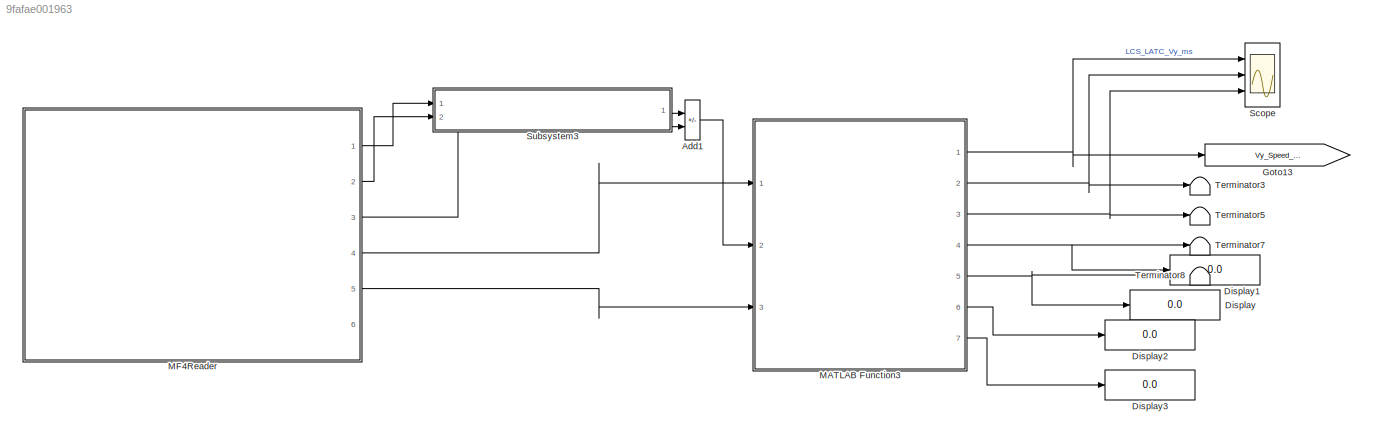
MODEL slx_9fafae001963
KIND model
CONFIG AbsTol = auto
CONFIG EnableMultiTasking = off
CONFIG FixedStep = 0.01
CONFIG MaxStep = auto
CONFIG MinStep = auto
CONFIG RelTol = 1e-3
CONFIG SampleTimeConstraint = Unconstrained
CONFIG SolverName = FixedStepDiscrete
CONFIG StartTime = 4067.8601
CONFIG StopTime = 4107.8798
BLOCK [Sum] Add1
  IconShape = rectangular
  Inputs = +-
  Ports = [2, 1]
BLOCK [Display] Display
  Decimation = 1
  Ports = [1]
BLOCK [Display] Display1
  Decimation = 1
  Ports = [1]
BLOCK [Display] Display2
  Decimation = 1
  Ports = [1]
BLOCK [Display] Display3
  Decimation = 1
  Ports = [1]
BLOCK [Goto] Goto13
  GotoTag = Vy_Speed_ms
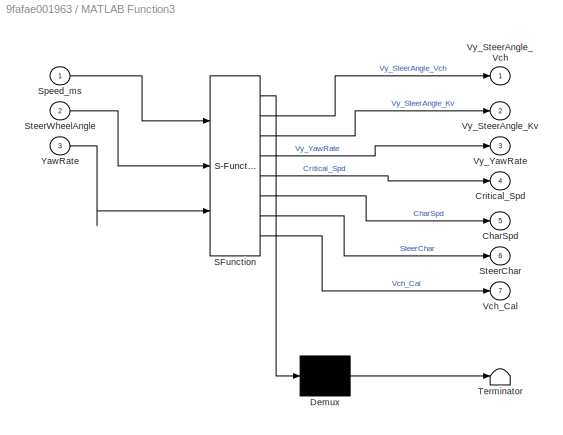
BLOCK [SubSystem] MATLAB Function3
  ErrorFcn = Stateflow.Translate.translate
  PermitHierarchicalResolution = ExplicitOnly
  Ports = [3, 7]
  RequestExecContextInheritance = off
  SFBlockType = MATLAB Function
  TreatAsAtomicUnit = on
BLOCK [Demux] MATLAB Function3/ Demux 
  Outputs = 1
  Ports = [1, 1]
BLOCK [S-Function] MATLAB Function3/ SFunction 
  EnableBusSupport = on
  FunctionName = sf_sfun
  PortCounts = [3 8]
  Ports = [3, 8]
  SFcnIsStateOwnerBlock = off
  SFunctionDeploymentMode = off
  Tag = Stateflow S-Function 1
BLOCK [Terminator] MATLAB Function3/ Terminator 
BLOCK [Outport] MATLAB Function3/CharSpd
  Port = 5
BLOCK [Outport] MATLAB Function3/Critical_Spd
  Port = 4
BLOCK [Inport] MATLAB Function3/Speed_ms
BLOCK [Outport] MATLAB Function3/SteerChar
  Port = 6
BLOCK [Inport] MATLAB Function3/SteerWheelAngle
  Port = 2
BLOCK [Outport] MATLAB Function3/Vch_Cal
  Port = 7
BLOCK [Outport] MATLAB Function3/Vy_SteerAngle_Kv
  Port = 2
BLOCK [Outport] MATLAB Function3/Vy_SteerAngle_Vch
BLOCK [Outport] MATLAB Function3/Vy_YawRate
  Port = 3
BLOCK [Inport] MATLAB Function3/YawRate
  Port = 3
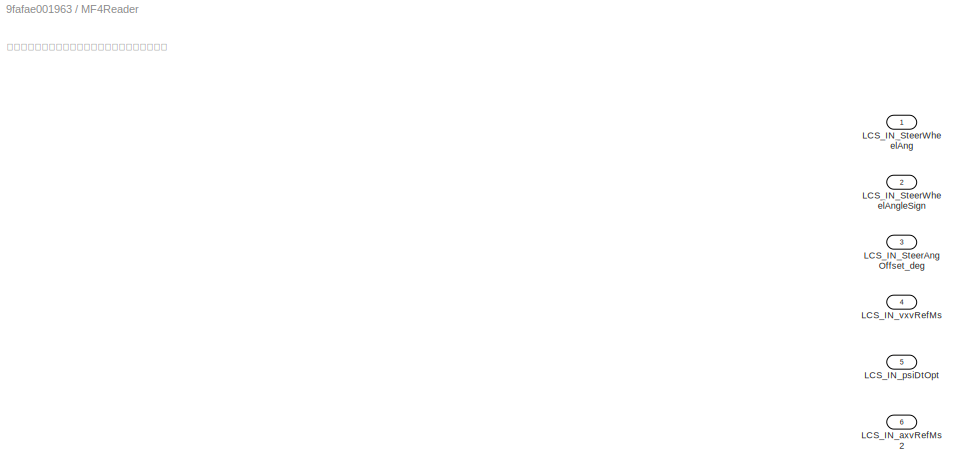
BLOCK [SubSystem] MF4Reader
  AttributesFormatString = %<Description>
  Description = Comment: 汇出有碰撞风险
  NameLocation = top
  Ports = [0, 6]
  RequestExecContextInheritance = off
BLOCK [Outport] MF4Reader/LCS_IN_SteerAngOffset_deg
  Port = 3
BLOCK [Outport] MF4Reader/LCS_IN_SteerWheelAng
BLOCK [Outport] MF4Reader/LCS_IN_SteerWheelAngleSign
  Port = 2
BLOCK [Outport] MF4Reader/LCS_IN_axvRefMs2
  Port = 6
BLOCK [Outport] MF4Reader/LCS_IN_psiDtOpt
  Port = 5
BLOCK [Outport] MF4Reader/LCS_IN_vxvRefMs
  Port = 4
BLOCK [Scope] Scope
  Floating = off
  NumInputPorts = 3
  Ports = [3]
  ScopeSpecificationString = Simulink.scopes.TimeScopeBlockCfg('CurrentConfiguration', extmgr.ConfigurationSet(extmgr.Configuration('Core','General UI',true),extmgr.Configuration('Core','Source UI',true),extmgr.Configuration('Sources','WiredSimulink',true),extmgr.Configuration('Visuals','Time Domain',true,'SerializedDisplays',{struct('MinYLimReal','-1.00000','MaxYLimReal','1.00000','YLabelReal','','MinYLimMag','0.00000','MaxY...<+1775ch>
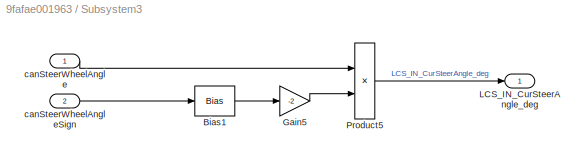
BLOCK [SubSystem] Subsystem3
  Ports = [2, 1]
  RequestExecContextInheritance = off
BLOCK [Bias] Subsystem3/Bias1
  Bias = -0.5
  SaturateOnIntegerOverflow = off
BLOCK [Gain] Subsystem3/Gain5
  Gain = -2
BLOCK [Outport] Subsystem3/LCS_IN_CurSteerAngle_deg
BLOCK [Product] Subsystem3/Product5
  Ports = [2, 1]
BLOCK [Inport] Subsystem3/canSteerWheelAngle
BLOCK [Inport] Subsystem3/canSteerWheelAngleSign
  Port = 2
BLOCK [Terminator] Terminator3
BLOCK [Terminator] Terminator5
BLOCK [Terminator] Terminator7
BLOCK [Terminator] Terminator8
ANNOTATION MF4Reader: 请勿手动删减内部的模块，否则可能带来未知错误！
LINE Add1:1 -> MATLAB Function3:2
NET MATLAB Function3:1 -> Goto13:1, Scope:1
NET MATLAB Function3:2 -> Scope:2, Terminator3:1
NET MATLAB Function3:3 -> Scope:3, Terminator5:1
NET MATLAB Function3:4 -> Display1:1, Terminator7:1
NET MATLAB Function3:5 -> Display:1, Terminator8:1
LINE MATLAB Function3:6 -> Display2:1
LINE MATLAB Function3:7 -> Display3:1
LINE MF4Reader:1 -> Subsystem3:1
LINE MF4Reader:2 -> Subsystem3:2
LINE MF4Reader:3 -> Add1:2
LINE MF4Reader:4 -> MATLAB Function3:1
LINE MF4Reader:5 -> MATLAB Function3:3
LINE Subsystem3/Bias1:1 -> Subsystem3/Gain5:1
LINE Subsystem3/Gain5:1 -> Subsystem3/Product5:2
LINE Subsystem3/Product5:1 -> Subsystem3/LCS_IN_CurSteerAngle_deg:1
LINE Subsystem3/canSteerWheelAngle:1 -> Subsystem3/Product5:1
LINE Subsystem3/canSteerWheelAngleSign:1 -> Subsystem3/Bias1:1
LINE Subsystem3:1 -> Add1:1
note: NET lines group one-source signal fan-out (src -> all destinations, sorted); 1:1 wires keep LINE
CHART MATLAB Function3 states=1 transitions=1
  STATE_LABEL 'eML_blk_kernel()'
  STATE_LABEL 'SCRIPT:\nfunction [Vy_SteerAngle_Vch,Vy_SteerAngle_Kv,Vy_YawRate,Critical_Spd,CharSpd,SteerChar,Vch_Cal]= Vy_Calc(Speed_ms,SteerWheelAngle,YawRate)\n    m = single(1720);\n    L=single(2.91);\n    a = single(1.27);\n    b = single(1.64);\n    Vch=single(23.5);\n    caf = single(2*55000);\n    car = single(2*75000);\n    %%  根据Vy/steerAngle = K_gain，其中Kv(不足转向斜率)根据特征车速计算\n    KKg1 = (Vch*Vch*Speed_ms)/((Vch^2...<+3541ch>'
CHART  states=0 transitions=0
